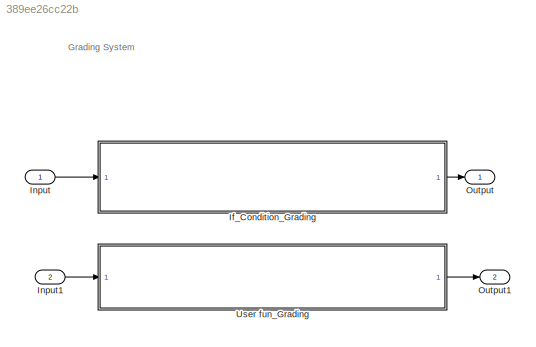
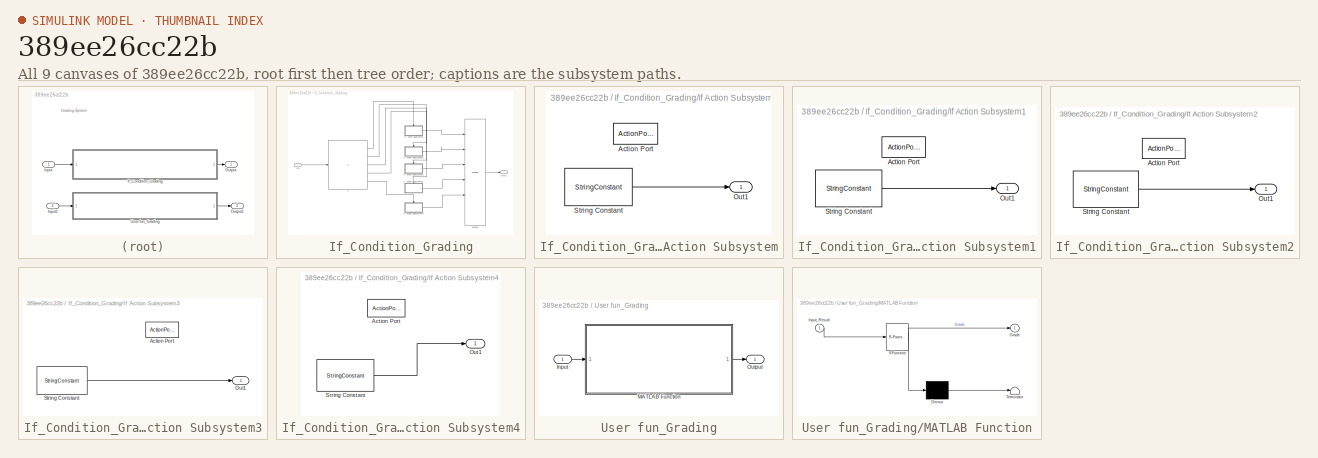
[diagram: thumbnail index - all 9 canvases of the model, root first then tree order]
MODEL slx_389ee26cc22b
KIND model
CONFIG AbsTol = auto
CONFIG EnableMultiTasking = off
CONFIG FixedStep = auto
CONFIG MaxStep = auto
CONFIG MinStep = auto
CONFIG RelTol = 1e-3
CONFIG SampleTimeConstraint = Unconstrained
CONFIG SolverName = VariableStepAuto
CONFIG StartTime = 0.0
CONFIG StopTime = 10.0
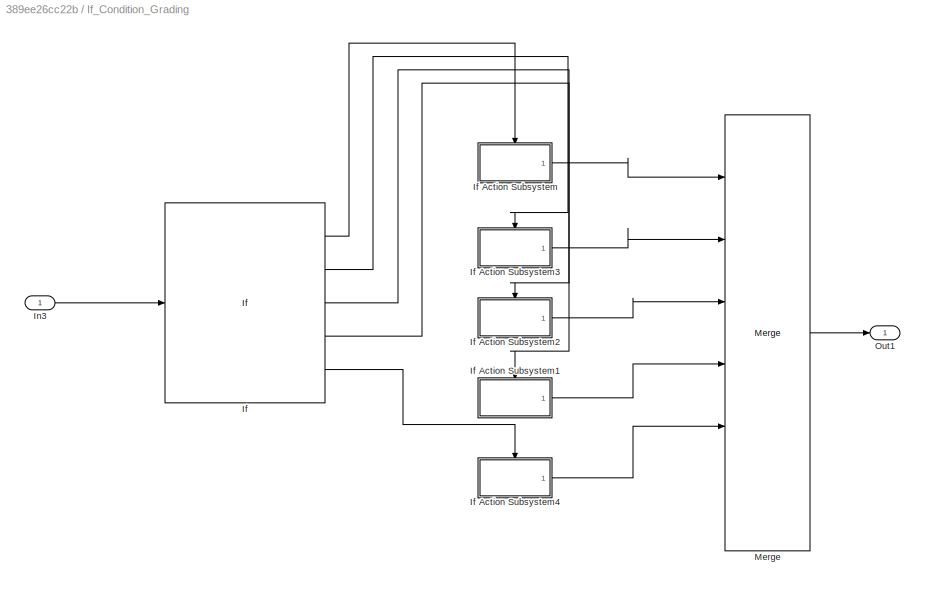
BLOCK [SubSystem] If_Condition_Grading
  Ports = [1, 1]
  RequestExecContextInheritance = off
BLOCK [If] If_Condition_Grading/If
  ElseIfExpressions = u1 >= 80 & u1 <70 , u1 >= 70 & u1 < 60, u1 >= 60 & u1 <= 50,u1 <50
  IfExpression = u1 >= 90 & u1 <=100
  Ports = [1, 5]
  ShowElse = off
BLOCK [SubSystem] If_Condition_Grading/If Action Subsystem
  Ports = [0, 1, 0, 0, 0, 0, 0, 1]
  RequestExecContextInheritance = off
  TreatAsAtomicUnit = on
BLOCK [ActionPort] If_Condition_Grading/If Action Subsystem/Action Port
  ActionPortLabel = if(u1 >= 90 & u1 <=100)
BLOCK [Outport] If_Condition_Grading/If Action Subsystem/Out1
BLOCK [StringConstant] If_Condition_Grading/If Action Subsystem/String Constant
  String = "A"
BLOCK [SubSystem] If_Condition_Grading/If Action Subsystem1
  Ports = [0, 1, 0, 0, 0, 0, 0, 1]
  RequestExecContextInheritance = off
  TreatAsAtomicUnit = on
BLOCK [ActionPort] If_Condition_Grading/If Action Subsystem1/Action Port
  ActionPortLabel = elseif( u1 >= 60 & u1 <= 50)
BLOCK [Outport] If_Condition_Grading/If Action Subsystem1/Out1
BLOCK [StringConstant] If_Condition_Grading/If Action Subsystem1/String Constant
  String = "D"
BLOCK [SubSystem] If_Condition_Grading/If Action Subsystem2
  Ports = [0, 1, 0, 0, 0, 0, 0, 1]
  RequestExecContextInheritance = off
  TreatAsAtomicUnit = on
BLOCK [ActionPort] If_Condition_Grading/If Action Subsystem2/Action Port
  ActionPortLabel = elseif( u1 >= 70 & u1 < 60)
BLOCK [Outport] If_Condition_Grading/If Action Subsystem2/Out1
BLOCK [StringConstant] If_Condition_Grading/If Action Subsystem2/String Constant
  String = "C"
BLOCK [SubSystem] If_Condition_Grading/If Action Subsystem3
  Ports = [0, 1, 0, 0, 0, 0, 0, 1]
  RequestExecContextInheritance = off
  TreatAsAtomicUnit = on
BLOCK [ActionPort] If_Condition_Grading/If Action Subsystem3/Action Port
  ActionPortLabel = elseif(u1 >= 80 & u1 <70 )
BLOCK [Outport] If_Condition_Grading/If Action Subsystem3/Out1
BLOCK [StringConstant] If_Condition_Grading/If Action Subsystem3/String Constant
  String = "B"
BLOCK [SubSystem] If_Condition_Grading/If Action Subsystem4
  Ports = [0, 1, 0, 0, 0, 0, 0, 1]
  RequestExecContextInheritance = off
  TreatAsAtomicUnit = on
BLOCK [ActionPort] If_Condition_Grading/If Action Subsystem4/Action Port
  ActionPortLabel = elseif(u1 <50)
BLOCK [Outport] If_Condition_Grading/If Action Subsystem4/Out1
BLOCK [StringConstant] If_Condition_Grading/If Action Subsystem4/String Constant
  String = "F"
BLOCK [Inport] If_Condition_Grading/In3
  OutDataTypeStr = uint8
BLOCK [Merge] If_Condition_Grading/Merge
  Inputs = 6
  Ports = [6, 1]
BLOCK [Outport] If_Condition_Grading/Out1
BLOCK [Inport] Input
BLOCK [Inport] Input1
  OutDataTypeStr = uint8
  Port = 2
BLOCK [Outport] Output
BLOCK [Outport] Output1
  Port = 2
BLOCK [SubSystem] User fun_Grading
  Ports = [1, 1]
  RequestExecContextInheritance = off
BLOCK [Inport] User fun_Grading/Input
  OutDataTypeStr = uint8
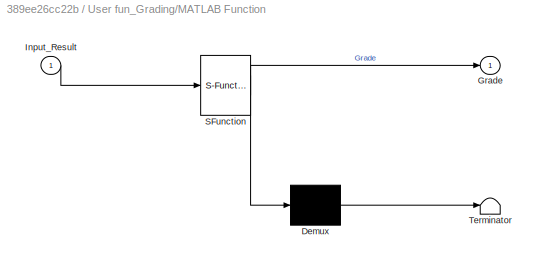
BLOCK [SubSystem] User fun_Grading/MATLAB Function
  ErrorFcn = Stateflow.Translate.translate
  PermitHierarchicalResolution = ExplicitOnly
  Ports = [1, 1]
  RequestExecContextInheritance = off
  SFBlockType = MATLAB Function
  TreatAsAtomicUnit = on
BLOCK [Demux] User fun_Grading/MATLAB Function/ Demux 
  Outputs = 1
  Ports = [1, 1]
BLOCK [S-Function] User fun_Grading/MATLAB Function/ SFunction 
  EnableBusSupport = on
  FunctionName = sf_sfun
  PortCounts = [1 2]
  Ports = [1, 2]
  SFcnIsStateOwnerBlock = off
  SFunctionDeploymentMode = off
  Tag = Stateflow S-Function 2
BLOCK [Terminator] User fun_Grading/MATLAB Function/ Terminator 
BLOCK [Outport] User fun_Grading/MATLAB Function/Grade
BLOCK [Inport] User fun_Grading/MATLAB Function/Input_Result
BLOCK [Outport] User fun_Grading/Output
  OutDataTypeStr = uint8
ANNOTATION (root): Grading System
LINE If_Condition_Grading/If Action Subsystem/String Constant:1 -> If_Condition_Grading/If Action Subsystem/Out1:1
LINE If_Condition_Grading/If Action Subsystem1/String Constant:1 -> If_Condition_Grading/If Action Subsystem1/Out1:1
LINE If_Condition_Grading/If Action Subsystem1:1 -> If_Condition_Grading/Merge:4
LINE If_Condition_Grading/If Action Subsystem2/String Constant:1 -> If_Condition_Grading/If Action Subsystem2/Out1:1
LINE If_Condition_Grading/If Action Subsystem2:1 -> If_Condition_Grading/Merge:3
LINE If_Condition_Grading/If Action Subsystem3/String Constant:1 -> If_Condition_Grading/If Action Subsystem3/Out1:1
LINE If_Condition_Grading/If Action Subsystem3:1 -> If_Condition_Grading/Merge:2
LINE If_Condition_Grading/If Action Subsystem4/String Constant:1 -> If_Condition_Grading/If Action Subsystem4/Out1:1
LINE If_Condition_Grading/If Action Subsystem4:1 -> If_Condition_Grading/Merge:5
LINE If_Condition_Grading/If Action Subsystem:1 -> If_Condition_Grading/Merge:1
LINE If_Condition_Grading/If:1 -> If_Condition_Grading/If Action Subsystem:ifaction
LINE If_Condition_Grading/If:2 -> If_Condition_Grading/If Action Subsystem3:ifaction
LINE If_Condition_Grading/If:3 -> If_Condition_Grading/If Action Subsystem2:ifaction
LINE If_Condition_Grading/If:4 -> If_Condition_Grading/If Action Subsystem1:ifaction
LINE If_Condition_Grading/If:5 -> If_Condition_Grading/If Action Subsystem4:ifaction
LINE If_Condition_Grading/In3:1 -> If_Condition_Grading/If:1
LINE If_Condition_Grading/Merge:1 -> If_Condition_Grading/Out1:1
LINE If_Condition_Grading:1 -> Output:1
LINE Input1:1 -> User fun_Grading:1
LINE Input:1 -> If_Condition_Grading:1
LINE User fun_Grading/Input:1 -> User fun_Grading/MATLAB Function:1
LINE User fun_Grading/MATLAB Function:1 -> User fun_Grading/Output:1
LINE User fun_Grading:1 -> Output1:1
CHART User fun_Grading/MATLAB Function states=1 transitions=1
  STATE_LABEL 'eML_blk_kernel()'
  STATE_LABEL 'SCRIPT:\nfunction Grade = fcn(Input_Result)\n\n     if (score < 0 || score > 100)\n        error("Invalid Result");\n     end\n     if (Input_Result >=90 && Input_Result <=100)\n        Grade = \'A\' ;\n     elseif (Input_Result >=80 && Input_Result < 90)\n         Grade = \'B\' ;\n     elseif (Input_Result >=70 && Input_Result < 80)\n        Grade = \'C\' ;\n     elseif (Input_Result >= 60 && Input_Result < 70)\n  ...<+112ch>'
CHART  states=0 transitions=0
